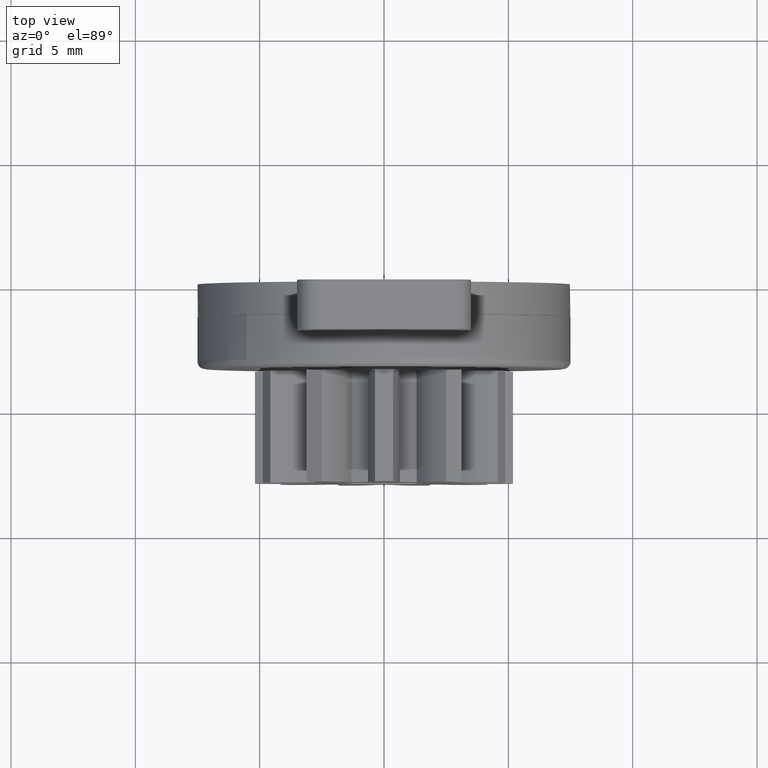
[diagram: clean part render]
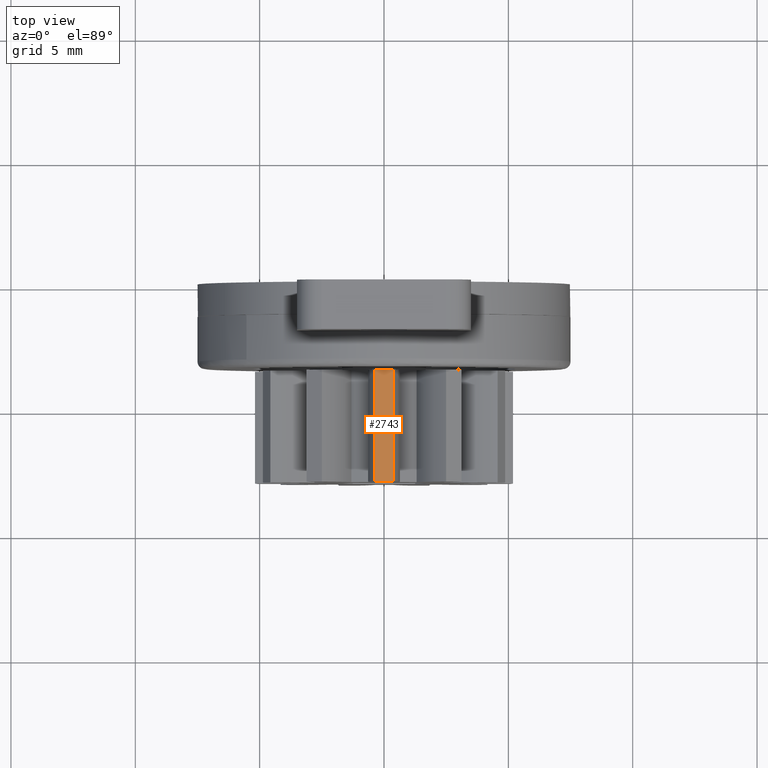
[diagram: same view with one face highlighted and labeled with its STEP entity id]
A machine part, top view. The second image highlights one B-rep face of the part: STEP entity #2743.
In plain terms, the highlighted face is a freeform B-spline surface patch.
Its self-contained STEP definition (entity closure, byte-faithful):
#404=CARTESIAN_POINT('',(0.362733663469456,-8.0,5.187333061351090));
#405=VERTEX_POINT('',#404);
#419=CARTESIAN_POINT('',(-0.362733663469452,-8.0,5.187333061351090));
#420=VERTEX_POINT('',#419);
#421=CARTESIAN_POINT('',(0.362733663469458,-8.0,5.187333061351086));
#422=CARTESIAN_POINT('',(1.029992E-015,-8.0,5.212697870022095));
#423=CARTESIAN_POINT('',(-0.362733663469451,-8.0,5.187333061351087));
#431=(BOUNDED_CURVE()B_SPLINE_CURVE(2,(#421,#422,#423),.UNSPECIFIED.,.F.,.U.)CURVE()GEOMETRIC_REPRESENTATION_ITEM()QUASI_UNIFORM_CURVE()RATIONAL_B_SPLINE_CURVE((1.0,0.997564050259824,1.0))REPRESENTATION_ITEM(''));
#432=EDGE_CURVE('',#405,#420,#431,.T.);
#1648=CARTESIAN_POINT('',(-0.362733663469452,-3.499999999999950,5.187333061351090));
#1649=VERTEX_POINT('',#1648);
#1663=CARTESIAN_POINT('',(0.362733663469456,-3.499999999999950,5.187333061351090));
#1664=VERTEX_POINT('',#1663);
#1665=CARTESIAN_POINT('',(0.362733663469458,-3.499999999999950,5.187333061351086));
#1666=CARTESIAN_POINT('',(1.029992E-015,-3.499999999999951,5.212697870022095));
#1667=CARTESIAN_POINT('',(-0.362733663469451,-3.499999999999950,5.187333061351087));
#1675=(BOUNDED_CURVE()B_SPLINE_CURVE(2,(#1665,#1666,#1667),.UNSPECIFIED.,.F.,.U.)CURVE()GEOMETRIC_REPRESENTATION_ITEM()QUASI_UNIFORM_CURVE()RATIONAL_B_SPLINE_CURVE((1.0,0.997564050259824,1.0))REPRESENTATION_ITEM(''));
#1676=EDGE_CURVE('',#1664,#1649,#1675,.T.);
#2709=CARTESIAN_POINT('',(-0.362733663469452,-3.499999999999950,5.187333061351090));
#2710=CARTESIAN_POINT('',(-0.362733663469452,-8.0,5.187333061351090));
#2711=QUASI_UNIFORM_CURVE('',1,(#2709,#2710),.UNSPECIFIED.,.F.,.U.);
#2712=EDGE_CURVE('',#1649,#420,#2711,.T.);
#2719=CARTESIAN_POINT('',(-0.398845723491214,-3.387499999999948,5.184681483838014));
#2720=CARTESIAN_POINT('',(-0.398845723491214,-8.115312500000002,5.184681483838014));
#2721=CARTESIAN_POINT('',(0.000023243994400,-3.387499999999948,5.215365563932599));
#2722=CARTESIAN_POINT('',(0.000023243994400,-8.115312500000000,5.215365563932599));
#2723=CARTESIAN_POINT('',(0.398891937956749,-3.387499999999948,5.184677928457379));
#2724=CARTESIAN_POINT('',(0.398891937956749,-8.115312500000000,5.184677928457379));
#2732=(BOUNDED_SURFACE()B_SPLINE_SURFACE(1,2,((#2719,#2721,#2723),(#2720,#2722,#2724)),.UNSPECIFIED.,.F.,.F.,.U.)B_SPLINE_SURFACE_WITH_KNOTS((2,2),(3,3),(0.0,4.727812500000053),(0.140316588074714,0.726374747961015),.UNSPECIFIED.)GEOMETRIC_REPRESENTATION_ITEM()RATIONAL_B_SPLINE_SURFACE(((0.997936024158735,0.994329256446283,0.996599255853511),(0.997936024158735,0.994329256446283,0.996599255853511)))REPRESENTATION_ITEM('')SURFACE());
#2733=ORIENTED_EDGE('',*,*,#432,.F.);
#2734=CARTESIAN_POINT('',(0.362733663469456,-3.499999999999950,5.187333061351090));
#2735=CARTESIAN_POINT('',(0.362733663469456,-8.0,5.187333061351090));
#2736=QUASI_UNIFORM_CURVE('',1,(#2734,#2735),.UNSPECIFIED.,.F.,.U.);
#2737=EDGE_CURVE('',#1664,#405,#2736,.T.);
#2738=ORIENTED_EDGE('',*,*,#2737,.F.);
#2739=ORIENTED_EDGE('',*,*,#1676,.T.);
#2740=ORIENTED_EDGE('',*,*,#2712,.T.);
#2741=EDGE_LOOP('',(#2733,#2738,#2739,#2740));
#2742=FACE_OUTER_BOUND('',#2741,.T.);
#2743=ADVANCED_FACE('',(#2742),#2732,.T.);